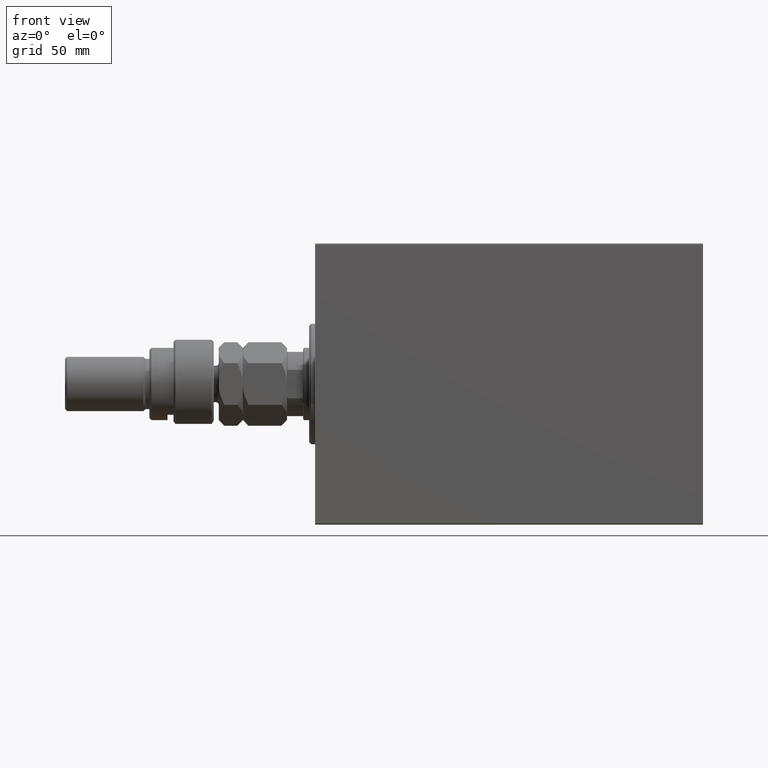
[diagram: clean part render]
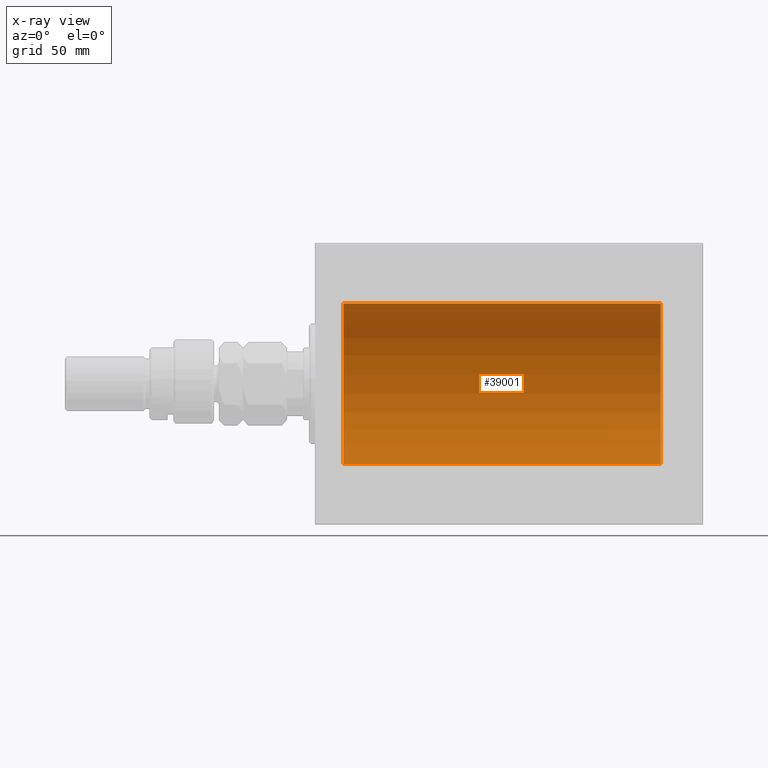
[diagram: x-ray — body ghosted, one internal face saturated and labeled with its STEP entity id]
A machine part, front view, then the same camera in x-ray: the body is ghosted and one INTERNAL B-rep face — a face not visible from any outside direction — is saturated and labeled: STEP entity #39001.
In plain terms, the highlighted cylindrical surface (partial cylindrical patch) has radius 40 mm, axis along (-1, -0, -0).
Its self-contained STEP definition (entity closure, byte-faithful):
#1858 = CARTESIAN_POINT ( 'NONE',  ( 172.0000000000000000, 0.000000000000000000, 0.000000000000000000 ) ) ;
#2226 = EDGE_CURVE ( 'NONE', #45338, #30924, #8870, .T. ) ;
#2615 = AXIS2_PLACEMENT_3D ( 'NONE', #27217, #41188, #33854 ) ;
#4879 = VERTEX_POINT ( 'NONE', #34586 ) ;
#5329 = DIRECTION ( 'NONE',  ( -1.000000000000000000, -0.000000000000000000, -0.000000000000000000 ) ) ;
#5403 = DIRECTION ( 'NONE',  ( -1.000000000000000000, -0.000000000000000000, -0.000000000000000000 ) ) ;
#5679 = ORIENTED_EDGE ( 'NONE', *, *, #10584, .T. ) ;
#7956 = EDGE_CURVE ( 'NONE', #44447, #45338, #43314, .T. ) ;
#8870 = LINE ( 'NONE', #33874, #33327 ) ;
#8969 = DIRECTION ( 'NONE',  ( -1.000000000000000000, 0.000000000000000000, 0.000000000000000000 ) ) ;
#10584 = EDGE_CURVE ( 'NONE', #4879, #30924, #14760, .T. ) ;
#12335 = EDGE_CURVE ( 'NONE', #44447, #4879, #40670, .T. ) ;
#14131 = CARTESIAN_POINT ( 'NONE',  ( 172.0000000000000000, 4.898587196589413026E-15, -40.00000000000000000 ) ) ;
#14760 = CIRCLE ( 'NONE', #41065, 40.00000000000000000 ) ;
#16106 = CARTESIAN_POINT ( 'NONE',  ( 172.0000000000000000, 0.000000000000000000, 40.00000000000000000 ) ) ;
#17334 = ORIENTED_EDGE ( 'NONE', *, *, #12335, .T. ) ;
#19804 = CARTESIAN_POINT ( 'NONE',  ( 14.00000000000001243, 0.000000000000000000, 0.000000000000000000 ) ) ;
#20454 = DIRECTION ( 'NONE',  ( 0.000000000000000000, 0.000000000000000000, 1.000000000000000000 ) ) ;
#21294 = EDGE_LOOP ( 'NONE', ( #28581, #40138, #17334, #5679 ) ) ;
#22698 = AXIS2_PLACEMENT_3D ( 'NONE', #1858, #5403, #20454 ) ;
#23568 = DIRECTION ( 'NONE',  ( 0.000000000000000000, 0.000000000000000000, 1.000000000000000000 ) ) ;
#27217 = CARTESIAN_POINT ( 'NONE',  ( 172.0000000000000000, 0.000000000000000000, 0.000000000000000000 ) ) ;
#27475 = VECTOR ( 'NONE', #30500, 1000.000000000000000 ) ;
#28581 = ORIENTED_EDGE ( 'NONE', *, *, #2226, .F. ) ;
#28960 = CARTESIAN_POINT ( 'NONE',  ( 172.0000000000000000, 0.000000000000000000, 40.00000000000000000 ) ) ;
#30500 = DIRECTION ( 'NONE',  ( -1.000000000000000000, -0.000000000000000000, -0.000000000000000000 ) ) ;
#30924 = VERTEX_POINT ( 'NONE', #35826 ) ;
#33327 = VECTOR ( 'NONE', #5329, 1000.000000000000000 ) ;
#33854 = DIRECTION ( 'NONE',  ( 0.000000000000000000, 0.000000000000000000, 1.000000000000000000 ) ) ;
#33874 = CARTESIAN_POINT ( 'NONE',  ( 172.0000000000000000, 4.898587196589413026E-15, -40.00000000000000000 ) ) ;
#34586 = CARTESIAN_POINT ( 'NONE',  ( 14.00000000000001243, 0.000000000000000000, 40.00000000000000000 ) ) ;
#35826 = CARTESIAN_POINT ( 'NONE',  ( 14.00000000000001243, 4.898587196589413026E-15, -40.00000000000000000 ) ) ;
#39001 = ADVANCED_FACE ( 'NONE', ( #42191 ), #41965, .F. ) ;
#40138 = ORIENTED_EDGE ( 'NONE', *, *, #7956, .F. ) ;
#40670 = LINE ( 'NONE', #16106, #27475 ) ;
#41065 = AXIS2_PLACEMENT_3D ( 'NONE', #19804, #8969, #23568 ) ;
#41188 = DIRECTION ( 'NONE',  ( -1.000000000000000000, 0.000000000000000000, 0.000000000000000000 ) ) ;
#41965 = CYLINDRICAL_SURFACE ( 'NONE', #22698, 40.00000000000000000 ) ;
#42191 = FACE_OUTER_BOUND ( 'NONE', #21294, .T. ) ;
#43314 = CIRCLE ( 'NONE', #2615, 40.00000000000000000 ) ;
#44447 = VERTEX_POINT ( 'NONE', #28960 ) ;
#45338 = VERTEX_POINT ( 'NONE', #14131 ) ;